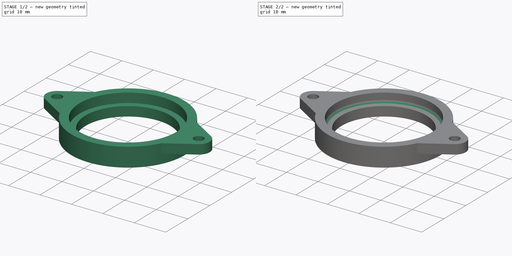
[diagram: build sequence overview — one tinted view per stage of 2, left to right]
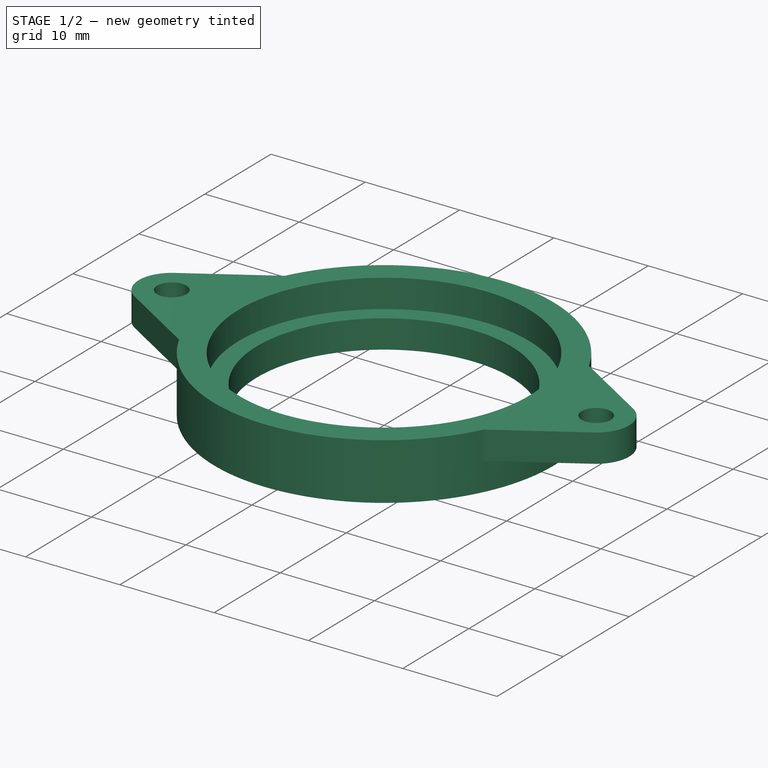
[diagram: stage 1 of 2 — iso view after this stage's code; geometry added in this stage tinted green]
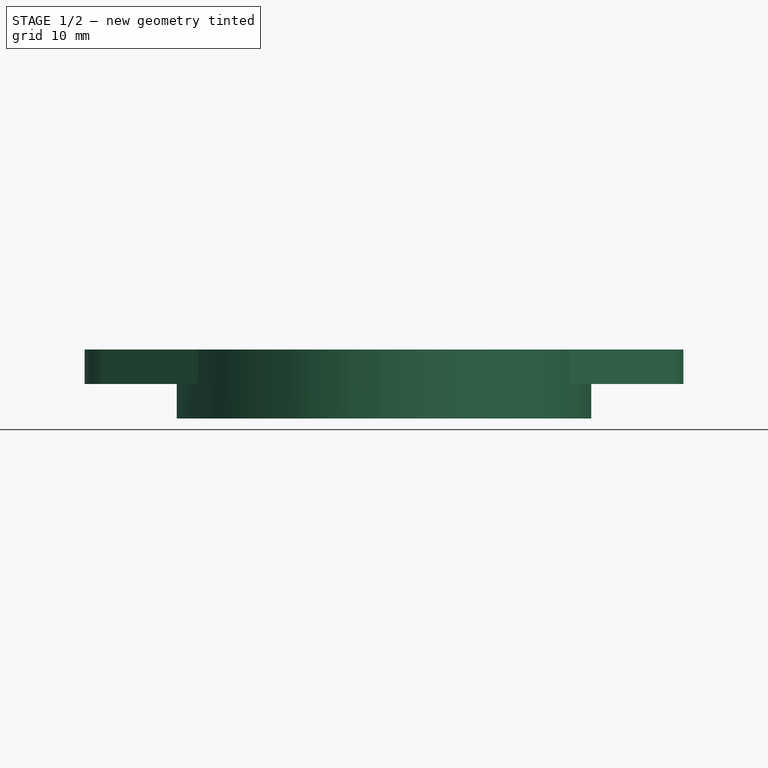
[diagram: stage 1 of 2 — front view after this stage's code; geometry added in this stage tinted green]
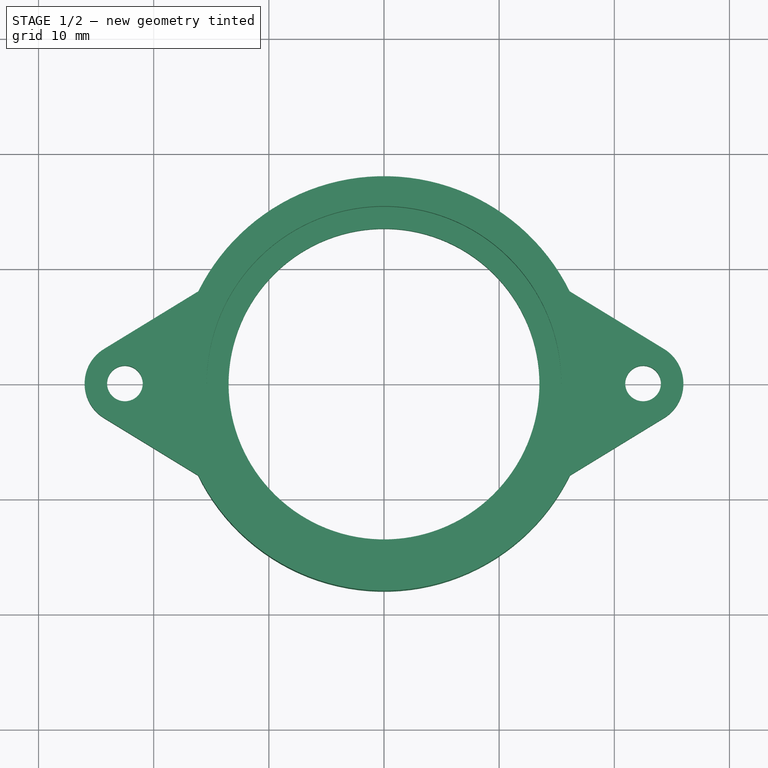
[diagram: stage 1 of 2 — top view after this stage's code; geometry added in this stage tinted green]
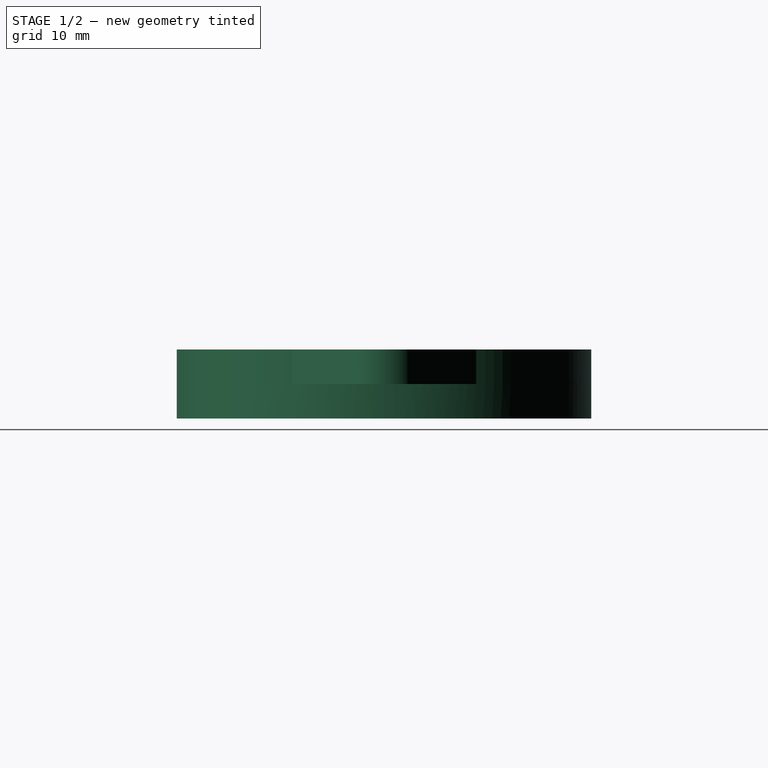
[diagram: stage 1 of 2 — right view after this stage's code; geometry added in this stage tinted green]
FCSTD DOCUMENT  (FreeCAD 0.20R29603 (Git))
Label: 2_Chest_Joint_Cap
License: All rights reserved
LicenseURL: http://en.wikipedia.org/wiki/All_rights_reserved
objects: Sketcher::SketchObject×2, PartDesign::Pad×2, PartDesign::Fillet×1, PartDesign::Body×1
note: 9 computed .brp shape members not serialized (recipe doc carries the construction recipe); baked Part::Feature solids carry a one-line shape summary decoded from their .brp

FEATURE [Sketcher::SketchObject] Sketch
  FullyConstrained = true
  MapMode = 5
  Support = -> [XY_Plane]
  sketch-geometry (2):
    g0: Circle CenterX=0 CenterY=0 CenterZ=0 NormalX=0 NormalY=0 NormalZ=1 AngleXU=0 Radius=18
    g1: Circle CenterX=0 CenterY=0 CenterZ=0 NormalX=0 NormalY=0 NormalZ=1 AngleXU=0 Radius=13.5
  constraints (4):
    c: Coincident(g0,g-1)
    c: Diameter(g0) = 36
    c: Coincident(g1,g0)
    c: Diameter(g1) = 27
FEATURE [PartDesign::Pad] Pad
  Direction = (0,0,1)
  Length = 3
  Length2 = 10
  Profile = -> Sketch
  ReferenceAxis = -> Sketch [N_Axis]
  Type = 0
FEATURE [Sketcher::SketchObject] Sketch001
  FullyConstrained = true
  MapMode = 5
  Placement = pos=(0,0,3) rot=(0,0,1;0rad)
  Support = -> [Pad]
  sketch-geometry (11):
    g0: Circle CenterX=0 CenterY=0 CenterZ=0 NormalX=0 NormalY=0 NormalZ=1 AngleXU=0 Radius=15.4
    g1: ArcOfCircle CenterX=0 CenterY=0 CenterZ=0 NormalX=0 NormalY=0 NormalZ=1 AngleXU=0 Radius=18 StartAngle=3.60215 EndAngle=5.82263
    g2: Circle CenterX=-22.5 CenterY=0 CenterZ=0 NormalX=0 NormalY=0 NormalZ=1 AngleXU=0 Radius=1.55
    g3: Circle CenterX=22.5 CenterY=0 CenterZ=0 NormalX=0 NormalY=0 NormalZ=1 AngleXU=0 Radius=1.55
    g4: ArcOfCircle CenterX=-22.5 CenterY=0 CenterZ=0 NormalX=0 NormalY=0 NormalZ=1 AngleXU=0 Radius=3.5 StartAngle=2.11953 EndAngle=4.16366
    g5: ArcOfCircle CenterX=22.5 CenterY=0 CenterZ=0 NormalX=0 NormalY=0 NormalZ=1 AngleXU=0 Radius=3.5 StartAngle=5.26112 EndAngle=7.30525
    g6: LineSegment StartX=-24.3256 StartY=-2.98615 StartZ=0 EndX=-16.1245 EndY=-8 EndZ=0
    g7: LineSegment StartX=-24.3256 StartY=2.98615 StartZ=0 EndX=-16.1245 EndY=8 EndZ=0
    g8: LineSegment StartX=24.3256 StartY=2.98615 StartZ=0 EndX=16.1245 EndY=8 EndZ=0
    g9: LineSegment StartX=24.3256 StartY=-2.98615 StartZ=0 EndX=16.1245 EndY=-8 EndZ=0
    g10: ArcOfCircle CenterX=0 CenterY=0 CenterZ=0 NormalX=0 NormalY=0 NormalZ=1 AngleXU=0 Radius=18 StartAngle=0.460554 EndAngle=2.68104
  constraints (26):
    c: Coincident(g0,g-1)
    c: Coincident(g1,g0)
    c: Diameter(g0) = 30.8
    c: Diameter(g1) = 36
    c: Coincident(g4,g2)
    c: Coincident(g5,g3)
    c: Equal(g2,g3)
    c: Diameter(g2) = 3.1
    c: Symmetric(g2,g3,g-2)
    c: Equal(g4,g5)
    c: Radius(g4) = 3.5
    c: Tangent(g7,g4) = 1.5708
    c: Tangent(g6,g4) = -1.5708
    c: Horizontal(g7,g8)
    c: Horizontal(g6,g9)
    c: Tangent(g5,g9) = 1.5708
    c: Tangent(g8,g5) = -1.5708
    c: Coincident(g10,g7)
    c: Coincident(g1,g6)
    c: Coincident(g1,g9)
    c: Coincident(g10,g8)
    c: Coincident(g1,g10)
    c: PointOnObject(g2,g-1)
    c: Symmetric(g1,g7,g-1)
    c: DistanceY(g1,g7) = 16
    c: DistanceX(g2,g3) = 45
FEATURE [PartDesign::Pad] Pad001
  BaseFeature = -> Pad
  Direction = (0,0,1)
  Length = 3
  Length2 = 10
  Profile = -> Sketch001
  ReferenceAxis = -> Sketch001 [N_Axis]
  Type = 0
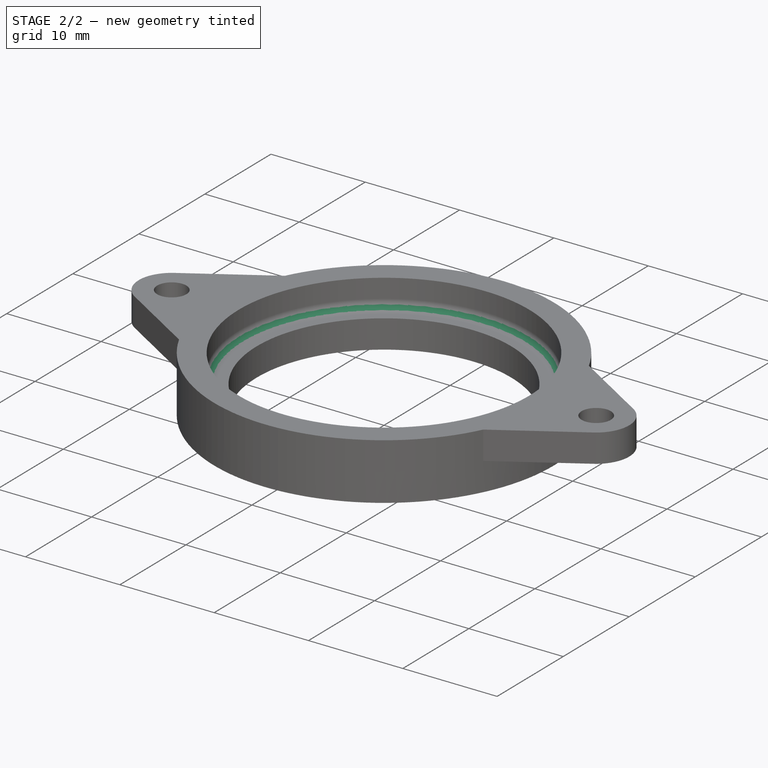
[diagram: stage 2 of 2 — iso view after this stage's code; geometry added in this stage tinted green]
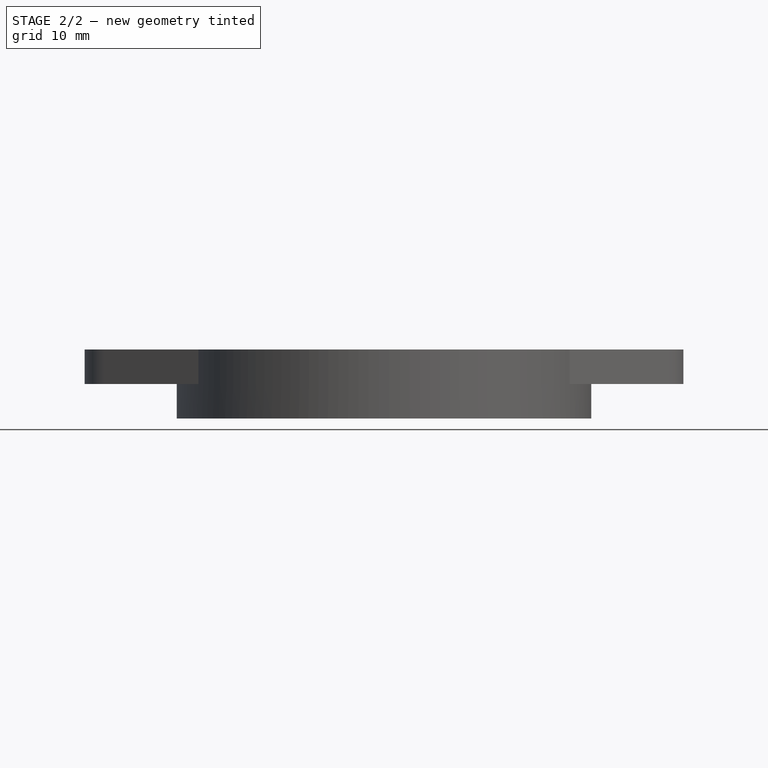
[diagram: stage 2 of 2 — front view after this stage's code; geometry added in this stage tinted green]
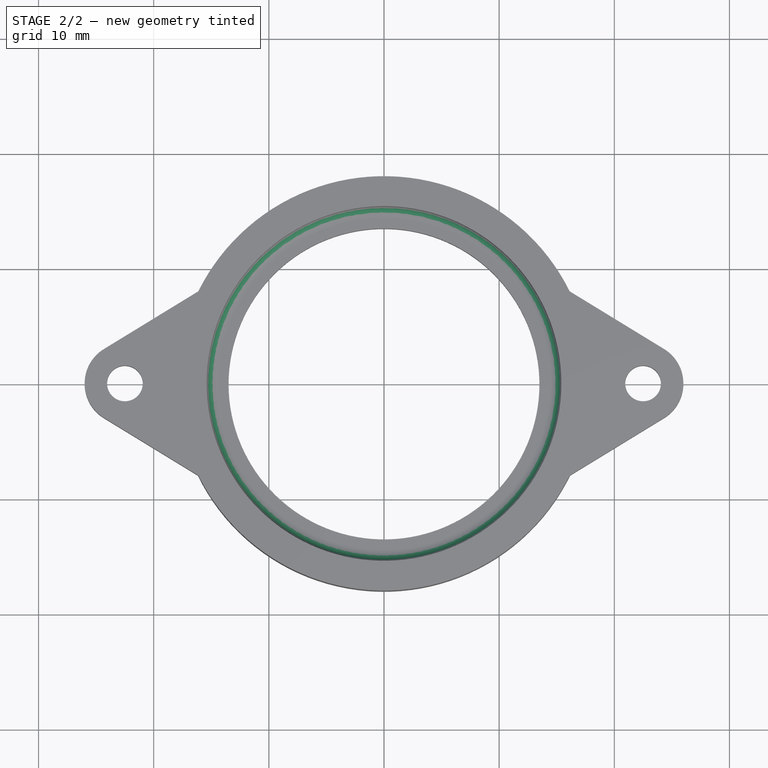
[diagram: stage 2 of 2 — top view after this stage's code; geometry added in this stage tinted green]
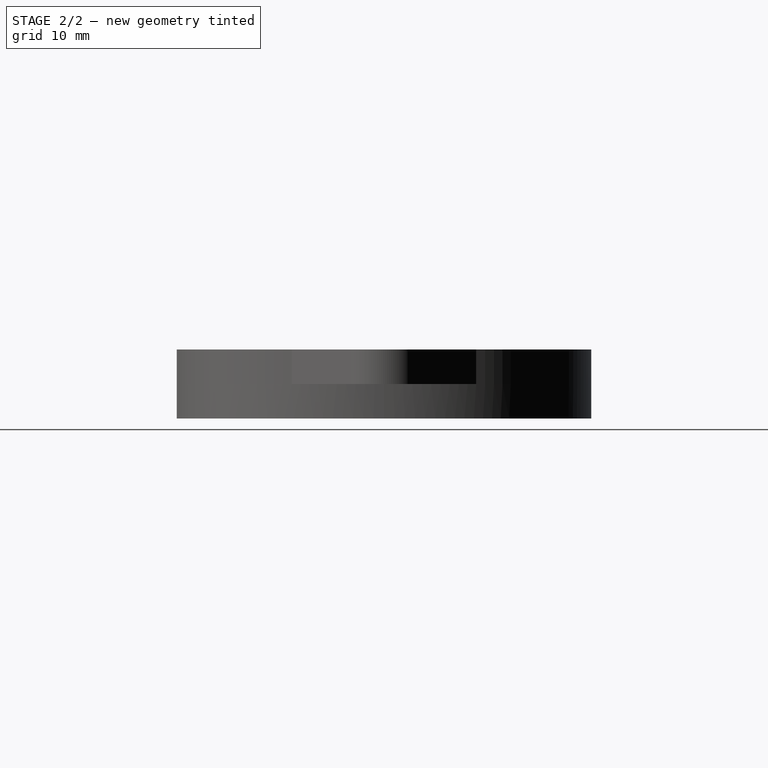
[diagram: stage 2 of 2 — right view after this stage's code; geometry added in this stage tinted green]
FEATURE [PartDesign::Fillet] Fillet
  Base = -> Pad001 [Edge40]
  BaseFeature = -> Pad001
  Radius = 1
  SupportTransform = false
  UseAllEdges = false
FEATURE [PartDesign::Body] Body
  Group = -> [Sketch,Pad,Sketch001,Pad001,Fillet]
  Origin = -> Origin
  Tip = -> Fillet
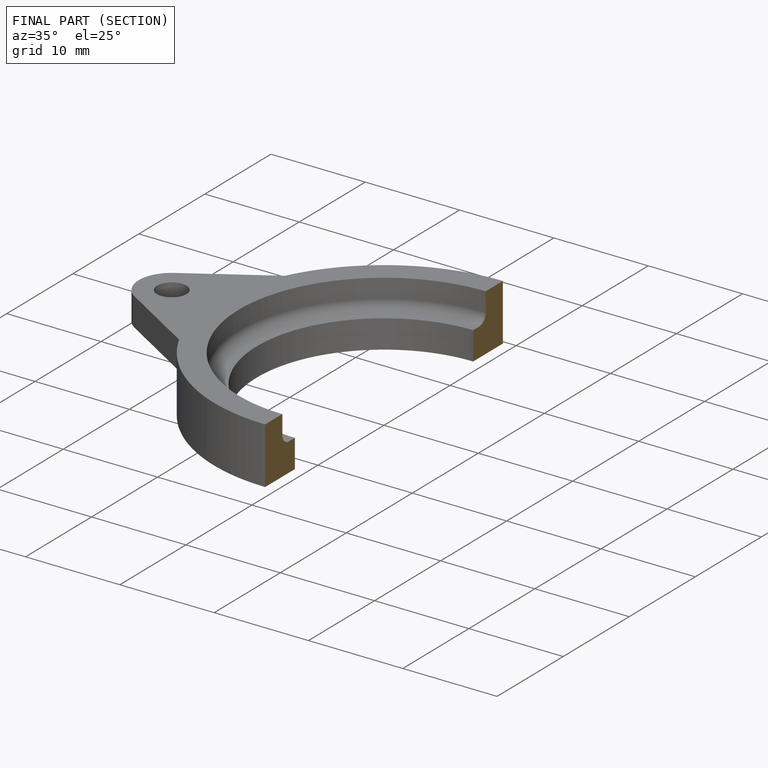
[diagram: finished part — half-section view (interior)]
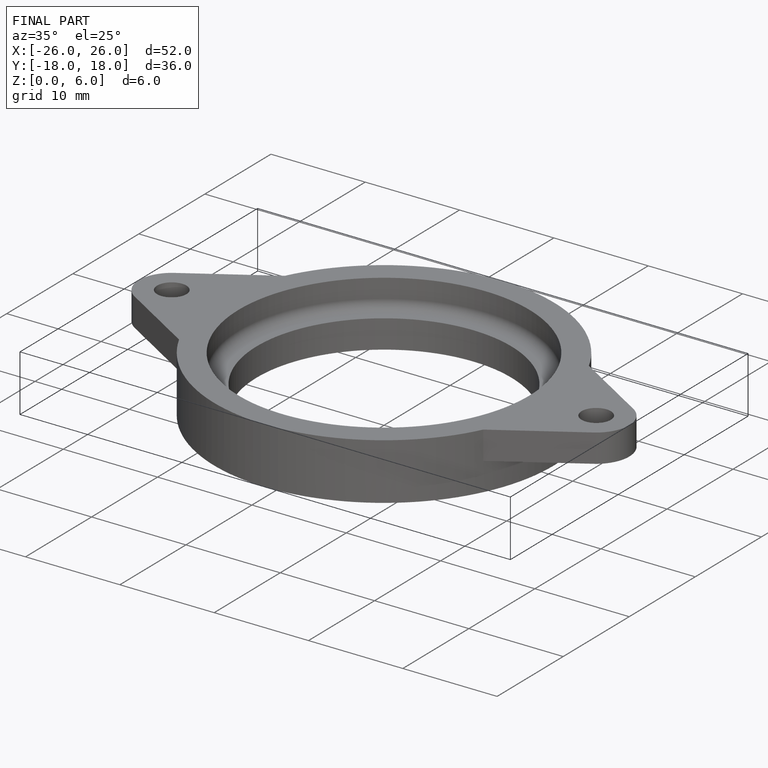
[diagram: finished part — iso view with bounding-box wireframe]
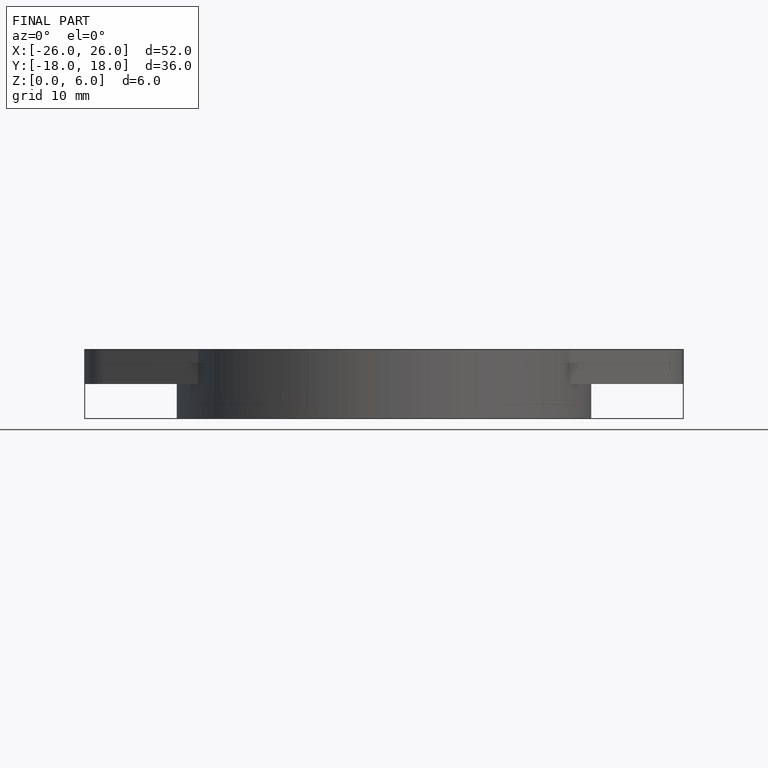
[diagram: finished part — front view with bounding-box wireframe]
